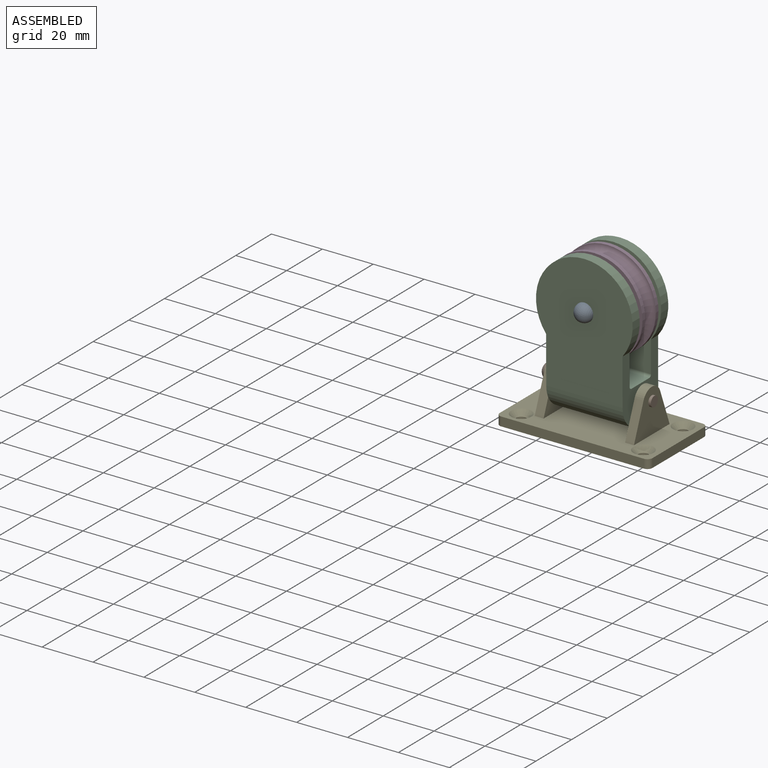
[diagram: assembled view]
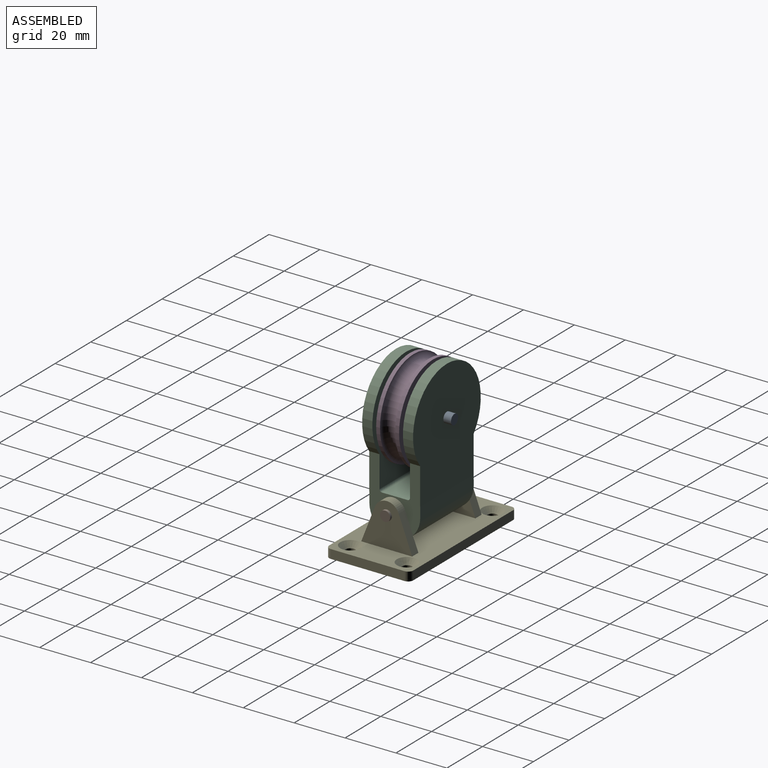
[diagram: assembled view, second angle]
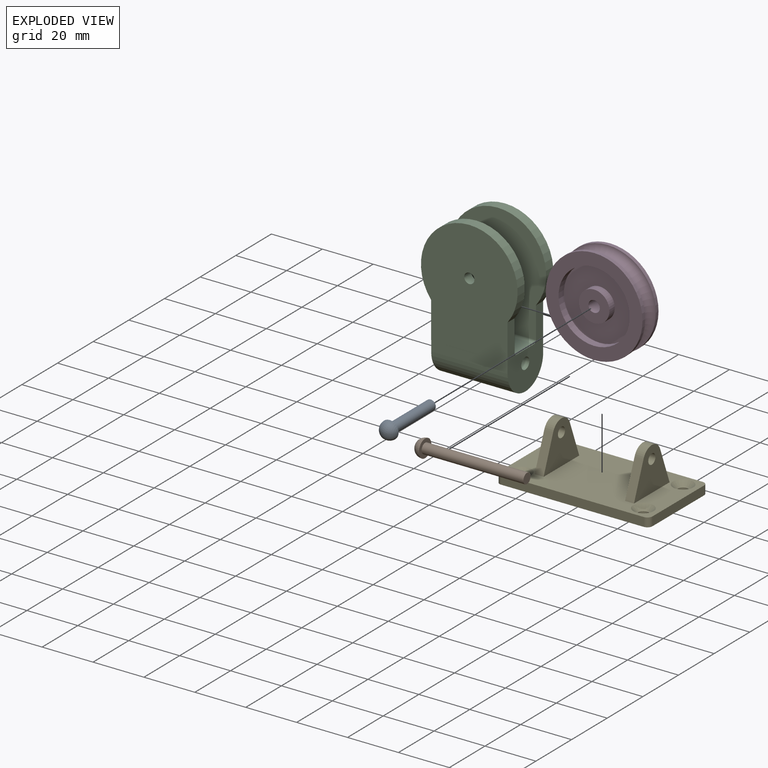
[diagram: exploded view]
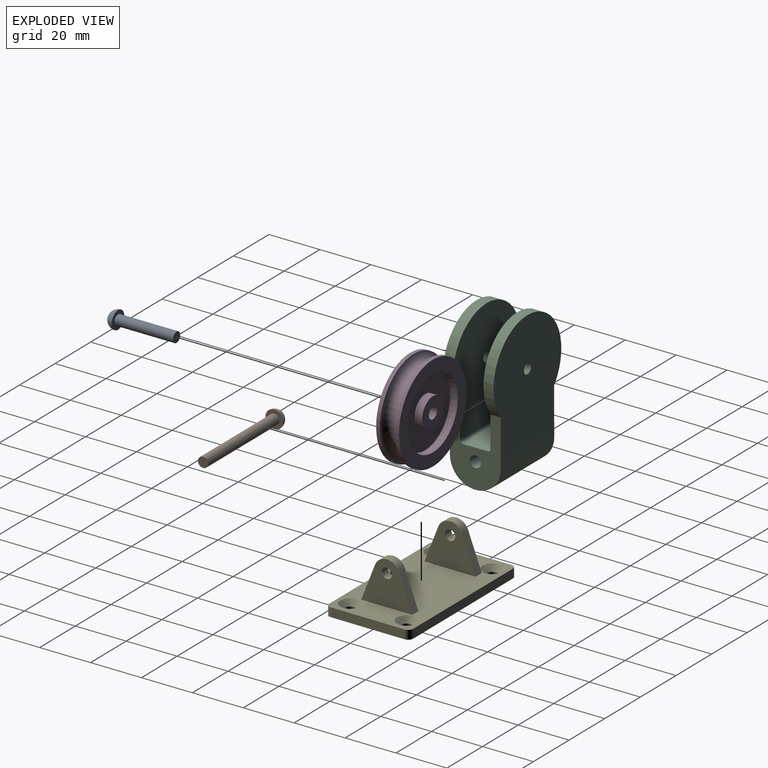
[diagram: exploded view, second angle]
ASSEMBLY  parts=5 mates=4
PART A: 4 faces, bbox 7x26.5x7 mm
  f0: cylinder r=2mm len=23mm, axis (0,-1,0), area 289mm2, adj f1,f3
  f1: plane 4x4mm, normal (0,1,0), area 12.6mm2, adj f0
  f2: sphere r=3.5mm, area 77mm2, adj f3
  f3: plane 7x7mm, normal (0,1,0), area 25.9mm2, adj f0,f2
PART B: 4 faces, bbox 43.5x7x7 mm
  f0: cylinder r=2mm len=40mm, axis (1,0,0), area 502.7mm2, adj f1,f3
  f1: plane 4x4mm, normal (1,0,0), area 12.6mm2, adj f0
  f2: sphere r=3.5mm, area 77mm2, adj f3
  f3: plane 7x7mm, normal (1,0,0), area 25.9mm2, adj f0,f2
PART C: 18 faces, bbox 38x20.1x59 mm
  f0: plane 45.01x38.01mm, normal (0,1,0), area 1398.1mm2, adj f1,f2,f3,f5,f17
  f1: plane 28.34x20.04mm, normal (-1,0,0), area 348.1mm2, adj f0,f2,f4,f5,f6,f7,f8,f9
  f2: cylinder r=19mm len=38mm, axis (0,1,0), area 339.2mm2, adj f0,f1,f3,f4
  f3: plane 28.34x20.04mm, normal (1,0,0), area 348.1mm2, adj f0,f2,f4,f5,f6,f7,f8,f9
  f4: plane 43.01x38mm, normal (0,-1,0), area 1338.5mm2, adj f1,f2,f3,f14,f17
  f5: plane 30.01x4.01mm, normal (0,1,0.01), area 120mm2, adj f0,f1,f3,f8
  f6: plane 30x4mm, normal (0,-1,0), area 120mm2, adj f1,f3,f8,f13
  f7: plane 30x10mm, normal (0,0,1), area 300mm2, adj f1,f3,f14,f15
  f8: cylinder r=10mm len=30mm, axis (-1,0,0), area 942.5mm2, adj f1,f3,f5,f6
  f9: cylinder r=2.25mm len=30mm, axis (-1,0,0), area 424.1mm2, adj f1,f3
  f10: cylinder r=19mm len=38mm, axis (0,1,0), area 339.2mm2, adj f1,f3,f11,f12
  f11: plane 45x38mm, normal (0,-1,0), area 1398.1mm2, adj f1,f3,f10,f13,f16
  f12: plane 43.03x38mm, normal (0,1,0), area 1339.2mm2, adj f1,f3,f10,f15,f16
  f13: plane 30x0.04mm, normal (0,0,-1), area 1.1mm2, adj f1,f3,f6,f11
  f14: cylinder r=1mm len=30mm, axis (1,0,0), area 47.1mm2, adj f1,f3,f4,f7
  f15: cylinder r=1mm len=30mm, axis (1,0,0), area 47.2mm2, adj f1,f3,f7,f12
  f16: cylinder r=2mm len=4mm, axis (0,-1,0), area 50.3mm2, adj f11,f12
  f17: cylinder r=2mm len=4mm, axis (0,-1,0), area 50.3mm2, adj f0,f4
PART D: 14 faces, bbox 41.2x9x41.2 mm
  f0: cylinder r=19mm len=38mm, axis (0,1,0), area 179.1mm2, adj f1,f6
  f1: plane 38x38mm, normal (0,-1,0), area 518.4mm2, adj f0,f3
  f2: cylinder r=6mm len=12mm, axis (0,-1,0), area 113.1mm2, adj f4,f5
  f3: cylinder r=14mm len=28mm, axis (0,-1,0), area 263.9mm2, adj f1,f4
  f4: plane 28x28mm, normal (0,-1,0), area 502.7mm2, adj f2,f3
  f5: plane 12x12mm, normal (0,-1,0), area 97.2mm2, adj f2,f13
  f6: torus R=19.05mm, axis (0,-1,0), area 1003.7mm2, adj f0,f12
  f7: plane 12x12mm, normal (0,1,0), area 97.2mm2, adj f8,f13
  f8: cylinder r=6mm len=12mm, axis (0,1,0), area 113.1mm2, adj f7,f9
  f9: plane 28x28mm, normal (0,1,0), area 502.7mm2, adj f8,f10
  f10: cylinder r=14mm len=28mm, axis (0,1,0), area 263.9mm2, adj f9,f11
  f11: plane 38x38mm, normal (0,1,0), area 518.4mm2, adj f10,f12
  f12: cylinder r=19mm len=38mm, axis (0,1,0), area 179.1mm2, adj f6,f11
  f13: cylinder r=2.25mm len=9mm, axis (0,-1,0), area 127.2mm2, adj f5,f7
PART E: 30 faces, bbox 60x33x20.6 mm
  f0: plane 13.79x5.38mm, normal (0,-0.93,0.36), area 51.8mm2, adj f1,f4,f5,f6
  f1: cylinder r=5mm len=9.33mm, axis (1,0,0), area 42.1mm2, adj f0,f2,f4,f5
  f2: plane 13.82x5.29mm, normal (0,0.93,0.36), area 51.8mm2, adj f1,f4,f5,f6
  f3: cylinder r=2mm len=4mm, axis (1,0,0), area 44mm2, adj f4,f5
  f4: plane 20x17.03mm, normal (-1,0,0), area 211.5mm2, adj f0,f1,f2,f3,f6
  f5: plane 20x17.03mm, normal (1,0,0), area 211.5mm2, adj f0,f1,f2,f3,f6
  f6: plane 60x33mm, normal (0,0,1), area 1635.5mm2, adj f0,f2,f4,f5,f7,f8,f9,f10
  f7: plane 29.01x3.59mm, normal (1,0,0), area 101.5mm2, adj f6,f8,f14,f15
  f8: cylinder r=2mm len=3.51mm, axis (0,0,1), area 11mm2, adj f6,f7,f9,f15
  f9: plane 56x3.5mm, normal (0,-1,0), area 196mm2, adj f6,f8,f10,f15
  f10: cylinder r=2mm len=3.51mm, axis (0,0,1), area 11mm2, adj f6,f9,f11,f15
  f11: plane 29.01x3.59mm, normal (-1,0,0), area 101.5mm2, adj f6,f10,f12,f15
  f12: cylinder r=2mm len=3.51mm, axis (0,0,1), area 11mm2, adj f6,f11,f13,f15
  f13: plane 56x3.5mm, normal (0,1,0), area 196mm2, adj f6,f12,f14,f15
  f14: cylinder r=2mm len=3.51mm, axis (0,0,1), area 11mm2, adj f6,f7,f13,f15
  f15: plane 60x33mm, normal (0,0,-1), area 1926.3mm2, adj f7,f8,f9,f10,f11,f12,f13,f14
  f16: plane 13.79x5.38mm, normal (0,-0.93,0.36), area 51.8mm2, adj f6,f17,f20,f21
  f17: cylinder r=5mm len=9.33mm, axis (-1,0,0), area 42.1mm2, adj f16,f18,f20,f21
  f18: plane 13.82x5.29mm, normal (0,0.93,0.36), area 51.8mm2, adj f6,f17,f20,f21
  f19: cylinder r=2mm len=4mm, axis (-1,0,0), area 44mm2, adj f20,f21
  f20: plane 20x17.03mm, normal (1,0,0), area 211.5mm2, adj f6,f16,f17,f18,f19
  f21: plane 20x17.03mm, normal (-1,0,0), area 211.5mm2, adj f6,f16,f17,f18,f19
  f22: cylinder r=2mm len=4mm, axis (0,0,1), area 18.8mm2, adj f15,f23
  f23: cone r=2mm half-angle=45deg, axis (0,0,1), area 53.3mm2, adj f6,f22
  f24: cylinder r=2mm len=4mm, axis (0,0,1), area 18.8mm2, adj f15,f25
  f25: cone r=2mm half-angle=45deg, axis (0,0,1), area 53.3mm2, adj f6,f24
  f26: cylinder r=2mm len=4mm, axis (0,0,1), area 18.8mm2, adj f15,f27
  f27: cone r=2mm half-angle=45deg, axis (0,0,1), area 53.3mm2, adj f6,f26
  f28: cylinder r=2mm len=4mm, axis (0,0,1), area 18.8mm2, adj f15,f29
  f29: cone r=2mm half-angle=45deg, axis (0,0,1), area 53.3mm2, adj f6,f28
PLACE A at identity
PLACE B at identity
PLACE C at identity
PLACE D at identity
PLACE E at identity fixed
MATE fastened A.f0 <-> C.f2  axis (0,1,0) through (0,-10,0)mm
MATE revolute C.f8 <-> E.f1  axis (-1,0,0) through (-15,0.04,-30)mm
MATE revolute C.f2 <-> D.f13  axis (0,1,0) through (0,-6,0)mm
MATE fastened E.f1 <-> B.f0  axis (-1,0,0) through (-19.5,0.04,-30)mm
